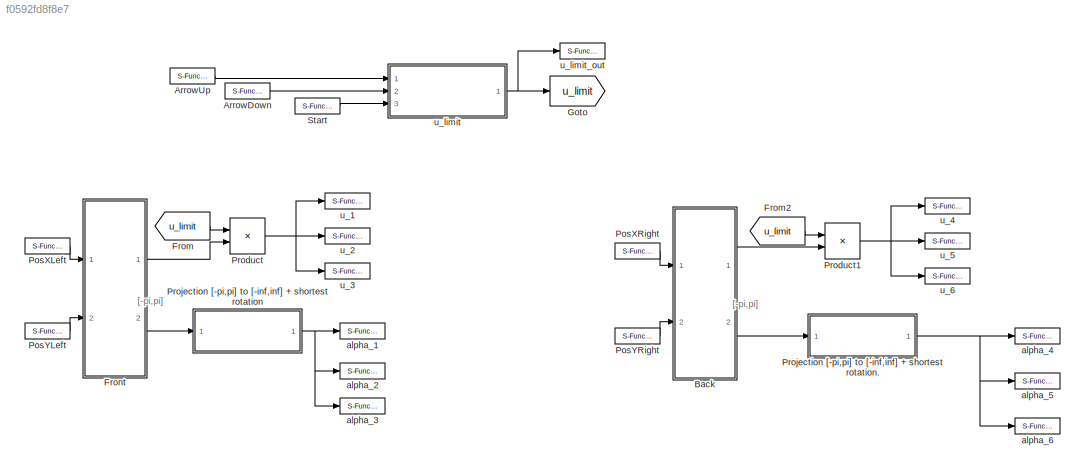
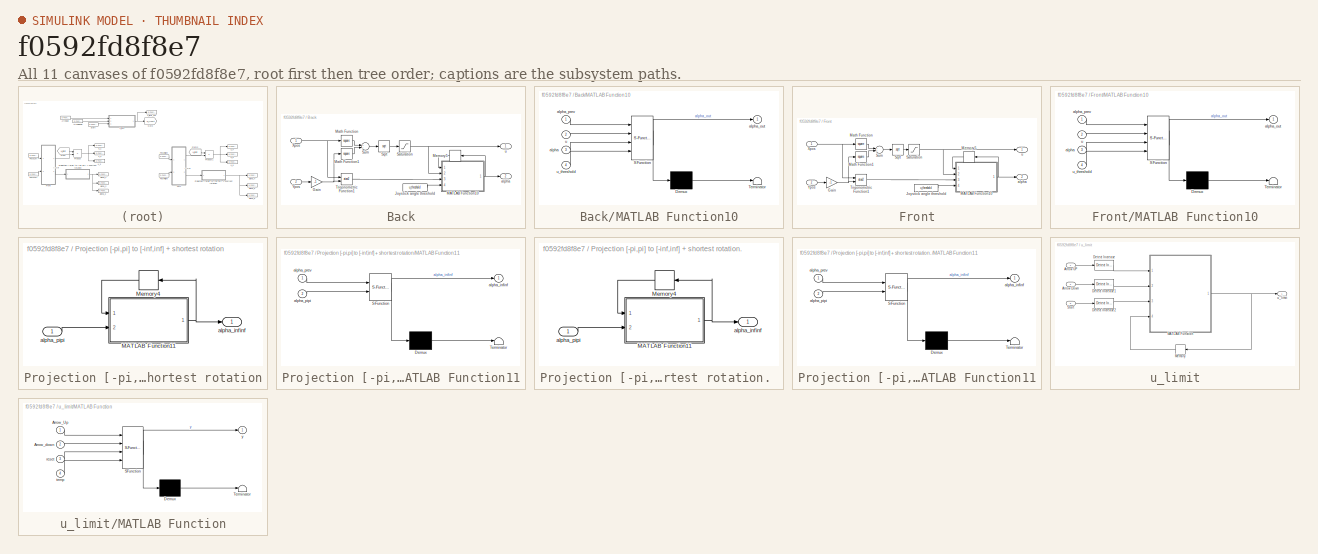
[diagram: thumbnail index - all 11 canvases of the model, root first then tree order]
MODEL slx_f0592fd8f8e7
KIND model
CONFIG AbsTol = auto
CONFIG EnableMultiTasking = on
CONFIG FixedStep = 0.01
CONFIG MaxStep = auto
CONFIG MinStep = auto
CONFIG RelTol = 1e-3
CONFIG SampleTimeConstraint = Unconstrained
CONFIG Solver = FixedStepDiscrete
CONFIG SolverName = FixedStepDiscrete
CONFIG StartTime = 0.0
CONFIG StopTime = inf
BLOCK [S-Function] ArrowDown
  CopyFcn = NIVeriStand_MDL_functions('', 'IO_copy');
  DeleteFcn = NIVeriStand_MDL_functions('', 'IO_delete');
  EnableBusSupport = off
  FunctionName = NIVeriStandIO
  MoveFcn = set_param(gcb, 'Mask', 'on');
  Parameters = width dtype portnum stime stype btype
  Ports = [0, 1]
  Priority = 3
  SFcnIsStateOwnerBlock = off
  SFunctionDeploymentMode = off
BLOCK [S-Function] ArrowUp
  CopyFcn = NIVeriStand_MDL_functions('', 'IO_copy');
  DeleteFcn = NIVeriStand_MDL_functions('', 'IO_delete');
  EnableBusSupport = off
  FunctionName = NIVeriStandIO
  MoveFcn = set_param(gcb, 'Mask', 'on');
  Parameters = width dtype portnum stime stype btype
  Ports = [0, 1]
  Priority = 4
  SFcnIsStateOwnerBlock = off
  SFunctionDeploymentMode = off
BLOCK [SubSystem] Back
  Ports = [2, 2]
  RequestExecContextInheritance = off
  Variant = off
BLOCK [Gain] Back/Gain
  Gain = -1
  OutDataTypeStr = Inherit: Inherit via internal rule
  ParamDataTypeStr = Inherit: Inherit via internal rule
  SaturateOnIntegerOverflow = off
BLOCK [Constant] Back/Joystick angle threshold
  Value = u_threshold
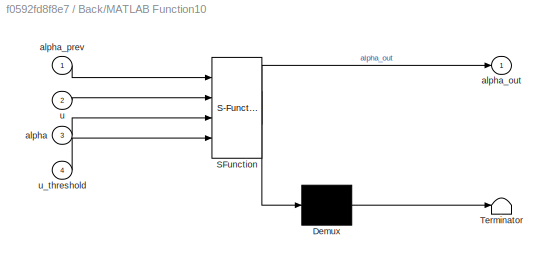
BLOCK [SubSystem] Back/MATLAB Function10
  ErrorFcn = Stateflow.Translate.translate
  PermitHierarchicalResolution = ExplicitOnly
  Ports = [4, 1]
  RequestExecContextInheritance = off
  SFBlockType = MATLAB Function
  TreatAsAtomicUnit = on
  Variant = off
BLOCK [Demux] Back/MATLAB Function10/ Demux 
  Outputs = 1
  Ports = [1, 1]
BLOCK [S-Function] Back/MATLAB Function10/ SFunction 
  EnableBusSupport = on
  FunctionName = sf_sfun
  PortCounts = [4 2]
  Ports = [4, 2]
  SFcnIsStateOwnerBlock = off
  SFunctionDeploymentMode = off
  Tag = Stateflow S-Function ctrl_sixaxis2thruster 1
BLOCK [Terminator] Back/MATLAB Function10/ Terminator 
BLOCK [Inport] Back/MATLAB Function10/alpha
  IconDisplay = Port number
  Port = 3
BLOCK [Outport] Back/MATLAB Function10/alpha_out
  IconDisplay = Port number
BLOCK [Inport] Back/MATLAB Function10/alpha_prev
  IconDisplay = Port number
BLOCK [Inport] Back/MATLAB Function10/u
  IconDisplay = Port number
  Port = 2
BLOCK [Inport] Back/MATLAB Function10/u_threshold
  IconDisplay = Port number
  Port = 4
BLOCK [Math] Back/Math Function
  Operator = square
  Ports = [1, 1]
BLOCK [Math] Back/Math Function1
  Operator = square
  Ports = [1, 1]
BLOCK [Memory] Back/Memory5
BLOCK [Saturate] Back/Saturation
  InputPortMap = u0
  LowerLimit = -1
  Ports = [1, 1]
  UpperLimit = 1
BLOCK [Sqrt] Back/Sqrt
BLOCK [Sum] Back/Sum
  InputSameDT = off
  OutDataTypeStr = Inherit: Inherit via internal rule
  Ports = [2, 1]
  SaturateOnIntegerOverflow = off
BLOCK [Trigonometry] Back/Trigonometric Function1
  Operator = atan2
  Ports = [2, 1]
BLOCK [Inport] Back/Xpos
  IconDisplay = Port number
BLOCK [Inport] Back/Ypos
  IconDisplay = Port number
  Port = 2
BLOCK [Outport] Back/alpha
  IconDisplay = Port number
  Port = 2
BLOCK [Outport] Back/u
  IconDisplay = Port number
BLOCK [From] From
  GotoTag = u_limit
BLOCK [From] From2
  GotoTag = u_limit
BLOCK [SubSystem] Front
  Ports = [2, 2]
  RequestExecContextInheritance = off
  Variant = off
BLOCK [Gain] Front/Gain
  Gain = -1
  OutDataTypeStr = Inherit: Inherit via internal rule
  ParamDataTypeStr = Inherit: Inherit via internal rule
  SaturateOnIntegerOverflow = off
BLOCK [Constant] Front/Joystick angle threshold
  Value = u_threshold
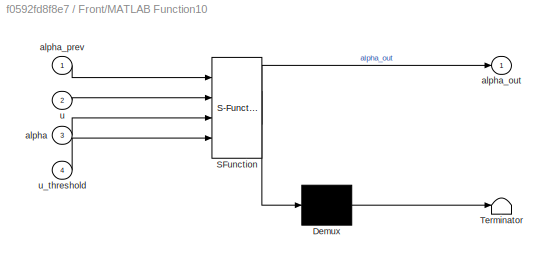
BLOCK [SubSystem] Front/MATLAB Function10
  ErrorFcn = Stateflow.Translate.translate
  PermitHierarchicalResolution = ExplicitOnly
  Ports = [4, 1]
  RequestExecContextInheritance = off
  SFBlockType = MATLAB Function
  TreatAsAtomicUnit = on
  Variant = off
BLOCK [Demux] Front/MATLAB Function10/ Demux 
  Outputs = 1
  Ports = [1, 1]
BLOCK [S-Function] Front/MATLAB Function10/ SFunction 
  EnableBusSupport = on
  FunctionName = sf_sfun
  PortCounts = [4 2]
  Ports = [4, 2]
  SFcnIsStateOwnerBlock = off
  SFunctionDeploymentMode = off
  Tag = Stateflow S-Function ctrl_sixaxis2thruster 4
BLOCK [Terminator] Front/MATLAB Function10/ Terminator 
BLOCK [Inport] Front/MATLAB Function10/alpha
  IconDisplay = Port number
  Port = 3
BLOCK [Outport] Front/MATLAB Function10/alpha_out
  IconDisplay = Port number
BLOCK [Inport] Front/MATLAB Function10/alpha_prev
  IconDisplay = Port number
BLOCK [Inport] Front/MATLAB Function10/u
  IconDisplay = Port number
  Port = 2
BLOCK [Inport] Front/MATLAB Function10/u_threshold
  IconDisplay = Port number
  Port = 4
BLOCK [Math] Front/Math Function
  Operator = square
  Ports = [1, 1]
BLOCK [Math] Front/Math Function1
  Operator = square
  Ports = [1, 1]
BLOCK [Memory] Front/Memory5
BLOCK [Saturate] Front/Saturation
  InputPortMap = u0
  LowerLimit = -1
  Ports = [1, 1]
  UpperLimit = 1
BLOCK [Sqrt] Front/Sqrt
BLOCK [Sum] Front/Sum
  InputSameDT = off
  OutDataTypeStr = Inherit: Inherit via internal rule
  Ports = [2, 1]
  SaturateOnIntegerOverflow = off
BLOCK [Trigonometry] Front/Trigonometric Function1
  Operator = atan2
  Ports = [2, 1]
BLOCK [Inport] Front/Xpos
  IconDisplay = Port number
BLOCK [Inport] Front/Ypos
  IconDisplay = Port number
  Port = 2
BLOCK [Outport] Front/alpha
  IconDisplay = Port number
  Port = 2
BLOCK [Outport] Front/u
  IconDisplay = Port number
BLOCK [Goto] Goto
  GotoTag = u_limit
BLOCK [S-Function] PosXLeft
  CopyFcn = NIVeriStand_MDL_functions('', 'IO_copy');
  DeleteFcn = NIVeriStand_MDL_functions('', 'IO_delete');
  EnableBusSupport = off
  FunctionName = NIVeriStandIO
  MoveFcn = set_param(gcb, 'Mask', 'on');
  Parameters = width dtype portnum stime stype btype
  Ports = [0, 1]
  Priority = 1
  SFcnIsStateOwnerBlock = off
  SFunctionDeploymentMode = off
BLOCK [S-Function] PosXRight
  CopyFcn = NIVeriStand_MDL_functions('', 'IO_copy');
  DeleteFcn = NIVeriStand_MDL_functions('', 'IO_delete');
  EnableBusSupport = off
  FunctionName = NIVeriStandIO
  MoveFcn = set_param(gcb, 'Mask', 'on');
  Parameters = width dtype portnum stime stype btype
  Ports = [0, 1]
  Priority = 6
  SFcnIsStateOwnerBlock = off
  SFunctionDeploymentMode = off
BLOCK [S-Function] PosYLeft
  CopyFcn = NIVeriStand_MDL_functions('', 'IO_copy');
  DeleteFcn = NIVeriStand_MDL_functions('', 'IO_delete');
  EnableBusSupport = off
  FunctionName = NIVeriStandIO
  MoveFcn = set_param(gcb, 'Mask', 'on');
  Parameters = width dtype portnum stime stype btype
  Ports = [0, 1]
  Priority = 2
  SFcnIsStateOwnerBlock = off
  SFunctionDeploymentMode = off
BLOCK [S-Function] PosYRight
  CopyFcn = NIVeriStand_MDL_functions('', 'IO_copy');
  DeleteFcn = NIVeriStand_MDL_functions('', 'IO_delete');
  EnableBusSupport = off
  FunctionName = NIVeriStandIO
  MoveFcn = set_param(gcb, 'Mask', 'on');
  Parameters = width dtype portnum stime stype btype
  Ports = [0, 1]
  Priority = 5
  SFcnIsStateOwnerBlock = off
  SFunctionDeploymentMode = off
BLOCK [Product] Product
  InputSameDT = off
  OutDataTypeStr = Inherit: Inherit via internal rule
  Ports = [2, 1]
  RndMeth = Floor
  SaturateOnIntegerOverflow = off
BLOCK [Product] Product1
  InputSameDT = off
  OutDataTypeStr = Inherit: Inherit via internal rule
  Ports = [2, 1]
  RndMeth = Floor
  SaturateOnIntegerOverflow = off
BLOCK [SubSystem] Projection [-pi,pi] to [-inf,inf] + shortest rotation
  Ports = [1, 1]
  RequestExecContextInheritance = off
  Variant = off
BLOCK [SubSystem] Projection [-pi,pi] to [-inf,inf] + shortest rotation. 
  Ports = [1, 1]
  RequestExecContextInheritance = off
  Variant = off
BLOCK [SubSystem] Projection [-pi,pi] to [-inf,inf] + shortest rotation. /MATLAB Function11
  ErrorFcn = Stateflow.Translate.translate
  PermitHierarchicalResolution = ExplicitOnly
  Ports = [2, 1]
  RequestExecContextInheritance = off
  SFBlockType = MATLAB Function
  TreatAsAtomicUnit = on
  Variant = off
BLOCK [Demux] Projection [-pi,pi] to [-inf,inf] + shortest rotation. /MATLAB Function11/ Demux 
  Outputs = 1
  Ports = [1, 1]
BLOCK [S-Function] Projection [-pi,pi] to [-inf,inf] + shortest rotation. /MATLAB Function11/ SFunction 
  EnableBusSupport = on
  FunctionName = sf_sfun
  PortCounts = [2 2]
  Ports = [2, 2]
  SFcnIsStateOwnerBlock = off
  SFunctionDeploymentMode = off
  Tag = Stateflow S-Function ctrl_sixaxis2thruster 5
BLOCK [Terminator] Projection [-pi,pi] to [-inf,inf] + shortest rotation. /MATLAB Function11/ Terminator 
BLOCK [Outport] Projection [-pi,pi] to [-inf,inf] + shortest rotation. /MATLAB Function11/alpha_infinf
  IconDisplay = Port number
BLOCK [Inport] Projection [-pi,pi] to [-inf,inf] + shortest rotation. /MATLAB Function11/alpha_pipi
  IconDisplay = Port number
  Port = 2
BLOCK [Inport] Projection [-pi,pi] to [-inf,inf] + shortest rotation. /MATLAB Function11/alpha_prev
  IconDisplay = Port number
BLOCK [Memory] Projection [-pi,pi] to [-inf,inf] + shortest rotation. /Memory4
BLOCK [Outport] Projection [-pi,pi] to [-inf,inf] + shortest rotation. /alpha_infinf
  IconDisplay = Port number
BLOCK [Inport] Projection [-pi,pi] to [-inf,inf] + shortest rotation. /alpha_pipi
  IconDisplay = Port number
BLOCK [SubSystem] Projection [-pi,pi] to [-inf,inf] + shortest rotation/MATLAB Function11
  ErrorFcn = Stateflow.Translate.translate
  PermitHierarchicalResolution = ExplicitOnly
  Ports = [2, 1]
  RequestExecContextInheritance = off
  SFBlockType = MATLAB Function
  TreatAsAtomicUnit = on
  Variant = off
BLOCK [Demux] Projection [-pi,pi] to [-inf,inf] + shortest rotation/MATLAB Function11/ Demux 
  Outputs = 1
  Ports = [1, 1]
BLOCK [S-Function] Projection [-pi,pi] to [-inf,inf] + shortest rotation/MATLAB Function11/ SFunction 
  EnableBusSupport = on
  FunctionName = sf_sfun
  PortCounts = [2 2]
  Ports = [2, 2]
  SFcnIsStateOwnerBlock = off
  SFunctionDeploymentMode = off
  Tag = Stateflow S-Function ctrl_sixaxis2thruster 3
BLOCK [Terminator] Projection [-pi,pi] to [-inf,inf] + shortest rotation/MATLAB Function11/ Terminator 
BLOCK [Outport] Projection [-pi,pi] to [-inf,inf] + shortest rotation/MATLAB Function11/alpha_infinf
  IconDisplay = Port number
BLOCK [Inport] Projection [-pi,pi] to [-inf,inf] + shortest rotation/MATLAB Function11/alpha_pipi
  IconDisplay = Port number
  Port = 2
BLOCK [Inport] Projection [-pi,pi] to [-inf,inf] + shortest rotation/MATLAB Function11/alpha_prev
  IconDisplay = Port number
BLOCK [Memory] Projection [-pi,pi] to [-inf,inf] + shortest rotation/Memory4
BLOCK [Outport] Projection [-pi,pi] to [-inf,inf] + shortest rotation/alpha_infinf
  IconDisplay = Port number
BLOCK [Inport] Projection [-pi,pi] to [-inf,inf] + shortest rotation/alpha_pipi
  IconDisplay = Port number
BLOCK [S-Function] Start
  CopyFcn = NIVeriStand_MDL_functions('', 'IO_copy');
  DeleteFcn = NIVeriStand_MDL_functions('', 'IO_delete');
  EnableBusSupport = off
  FunctionName = NIVeriStandIO
  MoveFcn = set_param(gcb, 'Mask', 'on');
  Parameters = width dtype portnum stime stype btype
  Ports = [0, 1]
  Priority = 7
  SFcnIsStateOwnerBlock = off
  SFunctionDeploymentMode = off
BLOCK [S-Function] alpha_1
  CopyFcn = NIVeriStand_MDL_functions('', 'IO_copy');
  DeleteFcn = NIVeriStand_MDL_functions('', 'IO_delete');
  EnableBusSupport = off
  FunctionName = NIVeriStandIO
  MoveFcn = set_param(gcb, 'Mask', 'on');
  Parameters = width dtype portnum stime stype btype
  Ports = [1]
  Priority = 1
  SFcnIsStateOwnerBlock = off
  SFunctionDeploymentMode = off
BLOCK [S-Function] alpha_2
  CopyFcn = NIVeriStand_MDL_functions('', 'IO_copy');
  DeleteFcn = NIVeriStand_MDL_functions('', 'IO_delete');
  EnableBusSupport = off
  FunctionName = NIVeriStandIO
  MoveFcn = set_param(gcb, 'Mask', 'on');
  Parameters = width dtype portnum stime stype btype
  Ports = [1]
  Priority = 2
  SFcnIsStateOwnerBlock = off
  SFunctionDeploymentMode = off
BLOCK [S-Function] alpha_3
  CopyFcn = NIVeriStand_MDL_functions('', 'IO_copy');
  DeleteFcn = NIVeriStand_MDL_functions('', 'IO_delete');
  EnableBusSupport = off
  FunctionName = NIVeriStandIO
  MoveFcn = set_param(gcb, 'Mask', 'on');
  Parameters = width dtype portnum stime stype btype
  Ports = [1]
  Priority = 3
  SFcnIsStateOwnerBlock = off
  SFunctionDeploymentMode = off
BLOCK [S-Function] alpha_4
  CopyFcn = NIVeriStand_MDL_functions('', 'IO_copy');
  DeleteFcn = NIVeriStand_MDL_functions('', 'IO_delete');
  EnableBusSupport = off
  FunctionName = NIVeriStandIO
  MoveFcn = set_param(gcb, 'Mask', 'on');
  Parameters = width dtype portnum stime stype btype
  Ports = [1]
  Priority = 5
  SFcnIsStateOwnerBlock = off
  SFunctionDeploymentMode = off
BLOCK [S-Function] alpha_5
  CopyFcn = NIVeriStand_MDL_functions('', 'IO_copy');
  DeleteFcn = NIVeriStand_MDL_functions('', 'IO_delete');
  EnableBusSupport = off
  FunctionName = NIVeriStandIO
  MoveFcn = set_param(gcb, 'Mask', 'on');
  Parameters = width dtype portnum stime stype btype
  Ports = [1]
  Priority = 4
  SFcnIsStateOwnerBlock = off
  SFunctionDeploymentMode = off
BLOCK [S-Function] alpha_6
  CopyFcn = NIVeriStand_MDL_functions('', 'IO_copy');
  DeleteFcn = NIVeriStand_MDL_functions('', 'IO_delete');
  EnableBusSupport = off
  FunctionName = NIVeriStandIO
  MoveFcn = set_param(gcb, 'Mask', 'on');
  Parameters = width dtype portnum stime stype btype
  Ports = [1]
  Priority = 6
  SFcnIsStateOwnerBlock = off
  SFunctionDeploymentMode = off
BLOCK [S-Function] u_1
  CopyFcn = NIVeriStand_MDL_functions('', 'IO_copy');
  DeleteFcn = NIVeriStand_MDL_functions('', 'IO_delete');
  EnableBusSupport = off
  FunctionName = NIVeriStandIO
  MoveFcn = set_param(gcb, 'Mask', 'on');
  Parameters = width dtype portnum stime stype btype
  Ports = [1]
  Priority = 8
  SFcnIsStateOwnerBlock = off
  SFunctionDeploymentMode = off
BLOCK [S-Function] u_2
  CopyFcn = NIVeriStand_MDL_functions('', 'IO_copy');
  DeleteFcn = NIVeriStand_MDL_functions('', 'IO_delete');
  EnableBusSupport = off
  FunctionName = NIVeriStandIO
  MoveFcn = set_param(gcb, 'Mask', 'on');
  Parameters = width dtype portnum stime stype btype
  Ports = [1]
  Priority = 9
  SFcnIsStateOwnerBlock = off
  SFunctionDeploymentMode = off
BLOCK [S-Function] u_3
  CopyFcn = NIVeriStand_MDL_functions('', 'IO_copy');
  DeleteFcn = NIVeriStand_MDL_functions('', 'IO_delete');
  EnableBusSupport = off
  FunctionName = NIVeriStandIO
  MoveFcn = set_param(gcb, 'Mask', 'on');
  Parameters = width dtype portnum stime stype btype
  Ports = [1]
  Priority = 10
  SFcnIsStateOwnerBlock = off
  SFunctionDeploymentMode = off
BLOCK [S-Function] u_4
  CopyFcn = NIVeriStand_MDL_functions('', 'IO_copy');
  DeleteFcn = NIVeriStand_MDL_functions('', 'IO_delete');
  EnableBusSupport = off
  FunctionName = NIVeriStandIO
  MoveFcn = set_param(gcb, 'Mask', 'on');
  Parameters = width dtype portnum stime stype btype
  Ports = [1]
  Priority = 11
  SFcnIsStateOwnerBlock = off
  SFunctionDeploymentMode = off
BLOCK [S-Function] u_5
  CopyFcn = NIVeriStand_MDL_functions('', 'IO_copy');
  DeleteFcn = NIVeriStand_MDL_functions('', 'IO_delete');
  EnableBusSupport = off
  FunctionName = NIVeriStandIO
  MoveFcn = set_param(gcb, 'Mask', 'on');
  Parameters = width dtype portnum stime stype btype
  Ports = [1]
  Priority = 12
  SFcnIsStateOwnerBlock = off
  SFunctionDeploymentMode = off
BLOCK [S-Function] u_6
  CopyFcn = NIVeriStand_MDL_functions('', 'IO_copy');
  DeleteFcn = NIVeriStand_MDL_functions('', 'IO_delete');
  EnableBusSupport = off
  FunctionName = NIVeriStandIO
  MoveFcn = set_param(gcb, 'Mask', 'on');
  Parameters = width dtype portnum stime stype btype
  Ports = [1]
  Priority = 13
  SFcnIsStateOwnerBlock = off
  SFunctionDeploymentMode = off
BLOCK [SubSystem] u_limit
  Ports = [3, 1]
  RequestExecContextInheritance = off
  Variant = off
BLOCK [Inport] u_limit/Arrow Down
  IconDisplay = Port number
  Port = 2
BLOCK [Inport] u_limit/Arrow UP
  IconDisplay = Port number
BLOCK [Reference] u_limit/Detect Increase  REF=simulink/Logic and Bit
Operations/Detect
Increase
  Ports = [1, 1]
  SourceBlock = simulink/Logic and Bit\nOperations/Detect\nIncrease
  SourceType = Detect Increase
BLOCK [Reference] u_limit/Detect Increase1  REF=simulink/Logic and Bit
Operations/Detect
Increase
  Ports = [1, 1]
  SourceBlock = simulink/Logic and Bit\nOperations/Detect\nIncrease
  SourceType = Detect Increase
BLOCK [Reference] u_limit/Detect Increase2  REF=simulink/Logic and Bit
Operations/Detect
Increase
  Ports = [1, 1]
  SourceBlock = simulink/Logic and Bit\nOperations/Detect\nIncrease
  SourceType = Detect Increase
BLOCK [SubSystem] u_limit/MATLAB Function
  ErrorFcn = Stateflow.Translate.translate
  PermitHierarchicalResolution = ExplicitOnly
  Ports = [4, 1]
  RequestExecContextInheritance = off
  SFBlockType = MATLAB Function
  TreatAsAtomicUnit = on
  Variant = off
BLOCK [Demux] u_limit/MATLAB Function/ Demux 
  Outputs = 1
  Ports = [1, 1]
BLOCK [S-Function] u_limit/MATLAB Function/ SFunction 
  EnableBusSupport = on
  FunctionName = sf_sfun
  PortCounts = [4 2]
  Ports = [4, 2]
  SFcnIsStateOwnerBlock = off
  SFunctionDeploymentMode = off
  Tag = Stateflow S-Function ctrl_sixaxis2thruster 2
BLOCK [Terminator] u_limit/MATLAB Function/ Terminator 
BLOCK [Inport] u_limit/MATLAB Function/Arrow_Up
  IconDisplay = Port number
BLOCK [Inport] u_limit/MATLAB Function/Arrow_down
  IconDisplay = Port number
  Port = 2
BLOCK [Inport] u_limit/MATLAB Function/reset
  IconDisplay = Port number
  Port = 3
BLOCK [Inport] u_limit/MATLAB Function/temp
  IconDisplay = Port number
  Port = 4
BLOCK [Outport] u_limit/MATLAB Function/y
  IconDisplay = Port number
BLOCK [Memory] u_limit/Memory
BLOCK [Inport] u_limit/Start
  IconDisplay = Port number
  Port = 3
BLOCK [Outport] u_limit/u_limit
  IconDisplay = Port number
BLOCK [S-Function] u_limit_out
  CopyFcn = NIVeriStand_MDL_functions('', 'IO_copy');
  DeleteFcn = NIVeriStand_MDL_functions('', 'IO_delete');
  EnableBusSupport = off
  FunctionName = NIVeriStandIO
  MoveFcn = set_param(gcb, 'Mask', 'on');
  Parameters = width dtype portnum stime stype btype
  Ports = [1]
  Priority = 7
  SFcnIsStateOwnerBlock = off
  SFunctionDeploymentMode = off
ANNOTATION (root): [-pi,pi]
LINE ArrowDown:1 -> u_limit:2
LINE ArrowUp:1 -> u_limit:1
NET Back/Gain:1 -> Back/Math Function1:1, Back/Trigonometric Function1:2
LINE Back/Joystick angle threshold:1 -> Back/MATLAB Function10:4
NET Back/MATLAB Function10:1 -> Back/Memory5:1, Back/alpha:1
LINE Back/Math Function1:1 -> Back/Sum:2
LINE Back/Math Function:1 -> Back/Sum:1
LINE Back/Memory5:1 -> Back/MATLAB Function10:1
NET Back/Saturation:1 -> Back/MATLAB Function10:2, Back/u:1
LINE Back/Sqrt:1 -> Back/Saturation:1
LINE Back/Sum:1 -> Back/Sqrt:1
LINE Back/Trigonometric Function1:1 -> Back/MATLAB Function10:3
NET Back/Xpos:1 -> Back/Math Function:1, Back/Trigonometric Function1:1
LINE Back/Ypos:1 -> Back/Gain:1
LINE Back:1 -> Product1:2
LINE Back:2 -> Projection [-pi,pi] to [-inf,inf] + shortest rotation. :1
LINE From2:1 -> Product1:1
LINE From:1 -> Product:1
NET Front/Gain:1 -> Front/Math Function1:1, Front/Trigonometric Function1:2
LINE Front/Joystick angle threshold:1 -> Front/MATLAB Function10:4
NET Front/MATLAB Function10:1 -> Front/Memory5:1, Front/alpha:1
LINE Front/Math Function1:1 -> Front/Sum:2
LINE Front/Math Function:1 -> Front/Sum:1
LINE Front/Memory5:1 -> Front/MATLAB Function10:1
NET Front/Saturation:1 -> Front/MATLAB Function10:2, Front/u:1
LINE Front/Sqrt:1 -> Front/Saturation:1
LINE Front/Sum:1 -> Front/Sqrt:1
LINE Front/Trigonometric Function1:1 -> Front/MATLAB Function10:3
NET Front/Xpos:1 -> Front/Math Function:1, Front/Trigonometric Function1:1
LINE Front/Ypos:1 -> Front/Gain:1
LINE Front:1 -> Product:2
LINE Front:2 -> Projection [-pi,pi] to [-inf,inf] + shortest rotation:1
LINE PosXLeft:1 -> Front:1
LINE PosXRight:1 -> Back:1
LINE PosYLeft:1 -> Front:2
LINE PosYRight:1 -> Back:2
NET Product1:1 -> u_4:1, u_5:1, u_6:1
NET Product:1 -> u_1:1, u_2:1, u_3:1
NET Projection [-pi,pi] to [-inf,inf] + shortest rotation. /MATLAB Function11:1 -> Projection [-pi,pi] to [-inf,inf] + shortest rotation. /Memory4:1, Projection [-pi,pi] to [-inf,inf] + shortest rotation. /alpha_infinf:1
LINE Projection [-pi,pi] to [-inf,inf] + shortest rotation. /Memory4:1 -> Projection [-pi,pi] to [-inf,inf] + shortest rotation. /MATLAB Function11:1
LINE Projection [-pi,pi] to [-inf,inf] + shortest rotation. /alpha_pipi:1 -> Projection [-pi,pi] to [-inf,inf] + shortest rotation. /MATLAB Function11:2
NET Projection [-pi,pi] to [-inf,inf] + shortest rotation. :1 -> alpha_4:1, alpha_5:1, alpha_6:1
NET Projection [-pi,pi] to [-inf,inf] + shortest rotation/MATLAB Function11:1 -> Projection [-pi,pi] to [-inf,inf] + shortest rotation/Memory4:1, Projection [-pi,pi] to [-inf,inf] + shortest rotation/alpha_infinf:1
LINE Projection [-pi,pi] to [-inf,inf] + shortest rotation/Memory4:1 -> Projection [-pi,pi] to [-inf,inf] + shortest rotation/MATLAB Function11:1
LINE Projection [-pi,pi] to [-inf,inf] + shortest rotation/alpha_pipi:1 -> Projection [-pi,pi] to [-inf,inf] + shortest rotation/MATLAB Function11:2
NET Projection [-pi,pi] to [-inf,inf] + shortest rotation:1 -> alpha_1:1, alpha_2:1, alpha_3:1
LINE Start:1 -> u_limit:3
LINE u_limit/Arrow Down:1 -> u_limit/Detect Increase1:1
LINE u_limit/Arrow UP:1 -> u_limit/Detect Increase:1
LINE u_limit/Detect Increase1:1 -> u_limit/MATLAB Function:2
LINE u_limit/Detect Increase2:1 -> u_limit/MATLAB Function:3
LINE u_limit/Detect Increase:1 -> u_limit/MATLAB Function:1
NET u_limit/MATLAB Function:1 -> u_limit/Memory:1, u_limit/u_limit:1
LINE u_limit/Memory:1 -> u_limit/MATLAB Function:4
LINE u_limit/Start:1 -> u_limit/Detect Increase2:1
NET u_limit:1 -> Goto:1, u_limit_out:1
note: NET lines group one-source signal fan-out (src -> all destinations, sorted); 1:1 wires keep LINE
CHART Back/MATLAB Function10 states=1 transitions=1
  STATE_LABEL 'eML_blk_kernel()'
  STATE_LABEL 'SCRIPT:\nfunction alpha_out = fcn(alpha_prev,u,alpha,u_threshold)\n%#codegen\n\nif u < u_threshold\n    alpha_out = alpha_prev;\nelse \n    alpha_out = alpha;\nend\n\nend'
CHART u_limit/MATLAB Function states=1 transitions=1
  STATE_LABEL 'eML_blk_kernel()'
  STATE_LABEL 'SCRIPT:\nfunction y = fcn(Arrow_Up,Arrow_down,reset,temp)\n%#codegen\npersistent signal;\n\nsignal = temp;\n\nif Arrow_Up ~= 0\n    signal = signal + 0.05;\n    \n    if signal > 1\n        signal = 1;\n    end\nend\n\nif Arrow_down ~= 0\n    signal = signal - 0.05;\n    \n    if signal < -1\n        signal = -1;\n    end\nend\n \nif reset ~= 0\n    signal = 0;\nend\n\n\n\ny = signal;'
CHART Projection [-pi,pi] to [-inf,inf]
+ shortest rotation/MATLAB Function11 states=1 transitions=1
  STATE_LABEL 'eML_blk_kernel()'
  STATE_LABEL 'SCRIPT:\nfunction alpha_infinf  = fcn(alpha_prev,alpha_pipi)\n\n% current rotation\nn = sign(alpha_prev)*fix( (abs(alpha_prev)+pi)/(2*pi) ); \n\nalpha_infinf = 2*pi*n + alpha_pipi;\n\nalpha_tilde = alpha_infinf - alpha_prev;\n\n% Shortest rotation\nif abs(alpha_tilde)>pi\n    alpha_infinf = alpha_infinf - sign(alpha_tilde)*2*pi;\nend\n\nend\n'
CHART Front/MATLAB Function10 states=1 transitions=1
  STATE_LABEL 'eML_blk_kernel()'
  STATE_LABEL 'SCRIPT:\nfunction alpha_out = fcn(alpha_prev,u,alpha,u_threshold)\n%#codegen\n\nif u < u_threshold\n    alpha_out = alpha_prev;\nelse \n    alpha_out = alpha;\nend\n\nend'
CHART Projection [-pi,pi] to [-inf,inf]
+ shortest rotation. /MATLAB Function11 states=1 transitions=1
  STATE_LABEL 'eML_blk_kernel()'
  STATE_LABEL 'SCRIPT:\nfunction alpha_infinf  = fcn(alpha_prev,alpha_pipi)\n\n% current rotation\nn = sign(alpha_prev)*fix( (abs(alpha_prev)+pi)/(2*pi) ); \n\nalpha_infinf = 2*pi*n + alpha_pipi;\n\nalpha_tilde = alpha_infinf - alpha_prev;\n\n% Shortest rotation\nif abs(alpha_tilde)>pi\n    alpha_infinf = alpha_infinf - sign(alpha_tilde)*2*pi;\nend\n\nend\n'
